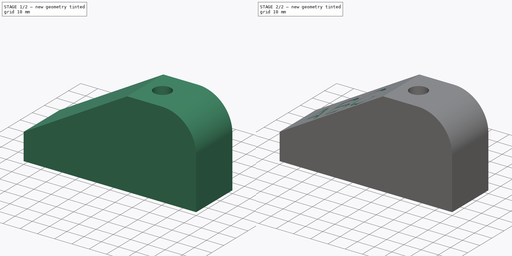
[diagram: build sequence overview — one tinted view per stage of 2, left to right]
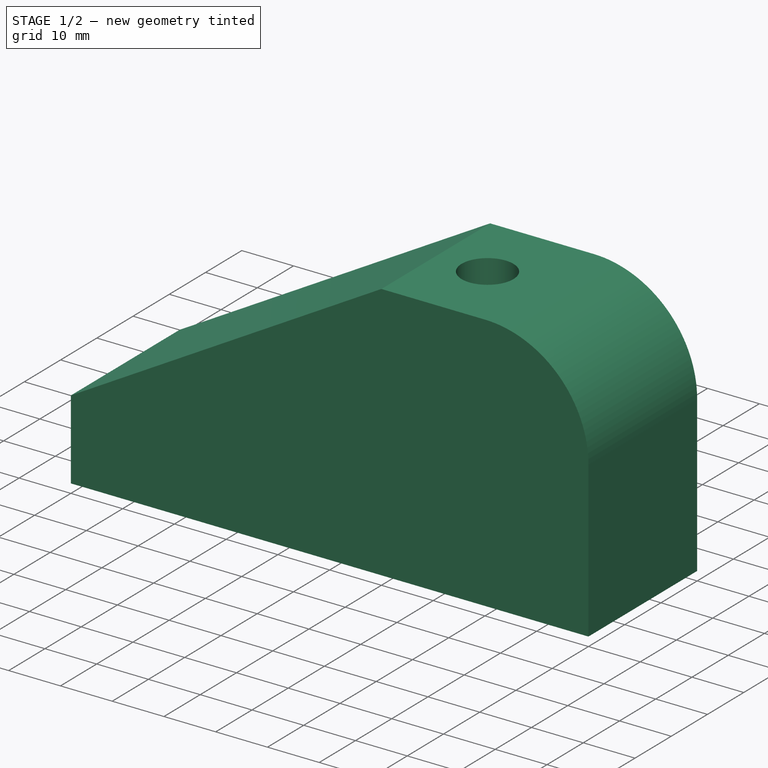
[diagram: stage 1 of 2 — iso view after this stage's code; geometry added in this stage tinted green]
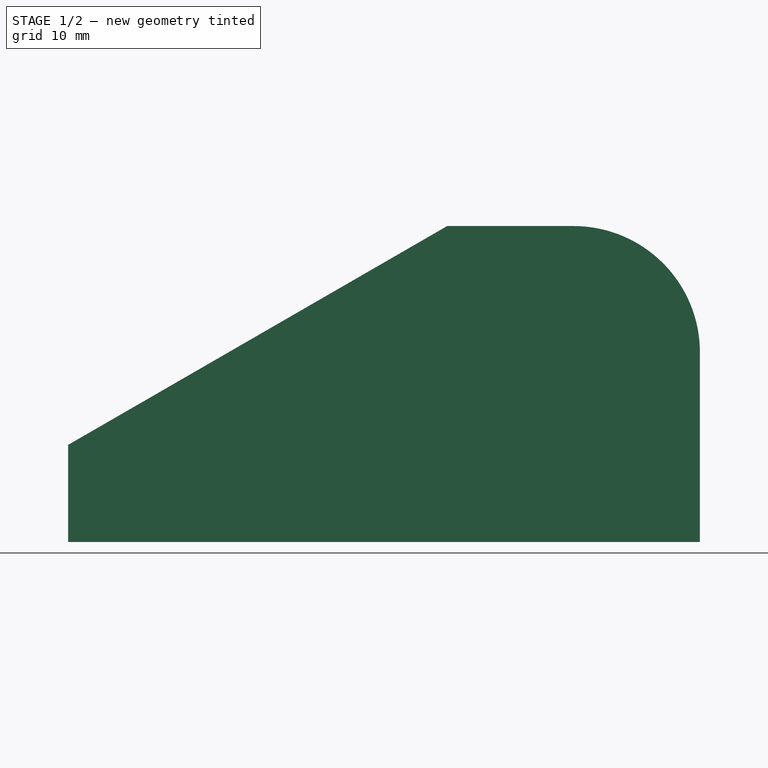
[diagram: stage 1 of 2 — front view after this stage's code; geometry added in this stage tinted green]
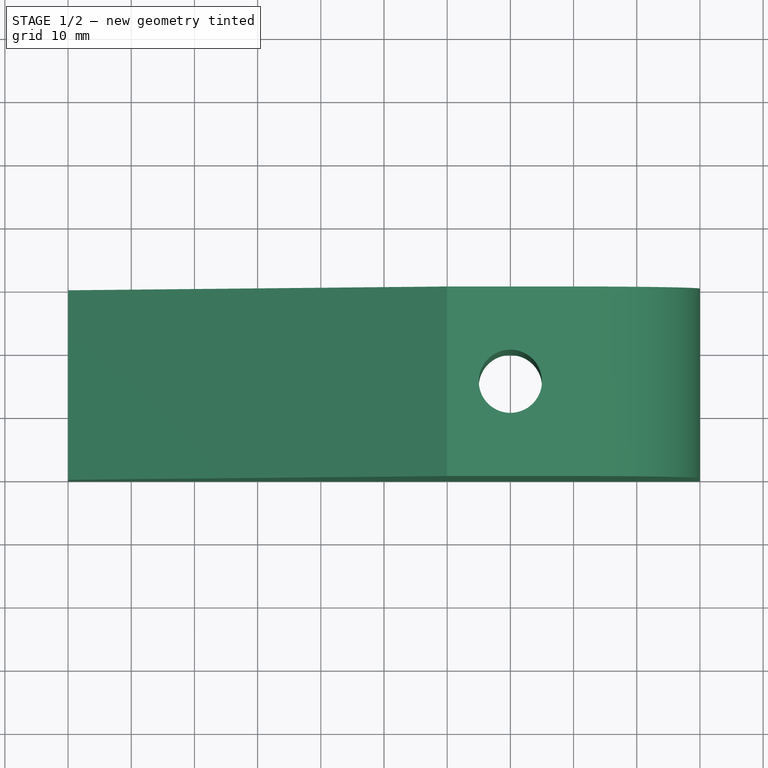
[diagram: stage 1 of 2 — top view after this stage's code; geometry added in this stage tinted green]
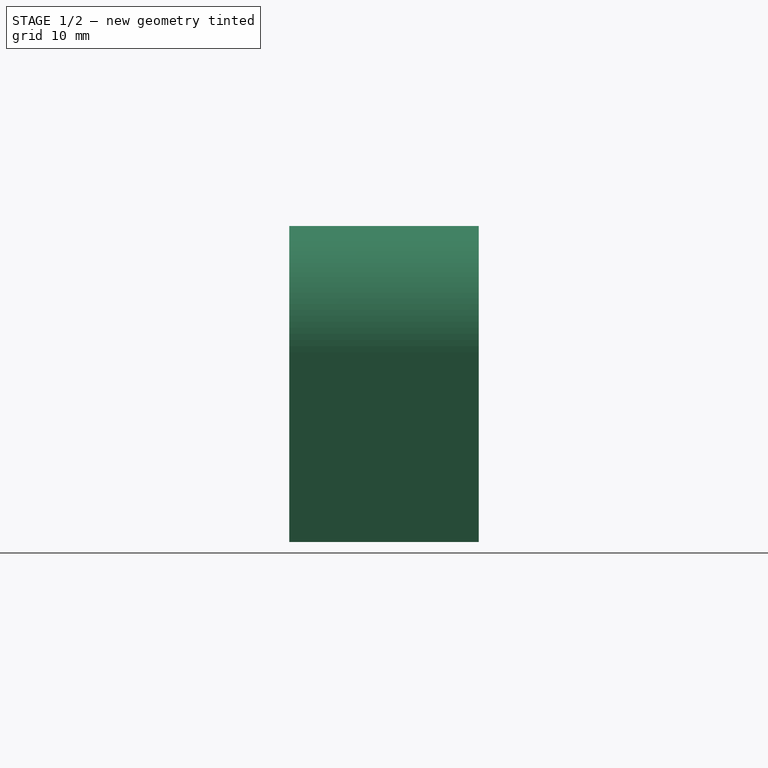
[diagram: stage 1 of 2 — right view after this stage's code; geometry added in this stage tinted green]
FCSTD DOCUMENT  (FreeCAD 0.18R15495 (Git))
Label: FirstPartV2
License: All rights reserved
LicenseURL: http://en.wikipedia.org/wiki/All_rights_reserved
objects: Sketcher::SketchObject×3, PartDesign::Pocket×2, PartDesign::Pad×1, PartDesign::Point×1, PartDesign::Plane×1, Part::Part2DObjectPython×1, PartDesign::Body×1
note: 13 computed .brp shape members not serialized (recipe doc carries the construction recipe); baked Part::Feature solids carry a one-line shape summary decoded from their .brp

FEATURE [Sketcher::SketchObject] Sketch
  MapMode = 5
  Placement = pos=(0,0,0) rot=(1,0,0;1.5708rad)
  Support = -> [XZ_Plane]
  sketch-geometry (6):
    g0: LineSegment StartX=0 StartY=0 StartZ=0 EndX=100 EndY=0 EndZ=0
    g1: LineSegment StartX=0 StartY=15.359 StartZ=0 EndX=60 EndY=50 EndZ=0
    g2: LineSegment StartX=60 StartY=50 StartZ=0 EndX=80 EndY=50 EndZ=0
    g3: LineSegment StartX=100 StartY=0 StartZ=0 EndX=100 EndY=30 EndZ=0
    g4: ArcOfCircle CenterX=80 CenterY=30 CenterZ=0 NormalX=0 NormalY=0 NormalZ=1 AngleXU=0 Radius=20 StartAngle=1e-16 EndAngle=1.5708
    g5: LineSegment StartX=0 StartY=0 StartZ=0 EndX=0 EndY=15.359 EndZ=0
  constraints (17):
    c: Coincident(g0,g-1)
    c: Horizontal(g0)
    c: Horizontal(g2)
    c: Coincident(g3,g0)
    c: Vertical(g3)
    c: Angle(g0,g1) = 0.523599
    c: DistanceX(g0,g0) = 100
    c: Coincident(g2,g1)
    c: Radius(g4) = 20
    c: Tangent(g4,g3) = -1.5708
    c: Coincident(g5,g0)
    c: PointOnObject(g5,g-2)
    c: Coincident(g1,g5)
    c: DistanceY(g0,g1) = 50
    c: Tangent(g2,g4) = 1.5708
    c: DistanceX(g0,g1) = 60
    c: DistanceX(g2,g2) = 20
FEATURE [PartDesign::Pad] Pad
  Length = 30
  Length2 = 100
  Placement = pos=(0,0,0) rot=(1,0,0;1.5708rad)
  Profile = -> Sketch
  Reversed = true
  Type = 0
FEATURE [PartDesign::Point] DatumPoint
  AttacherType = Attacher::AttachEnginePoint
  MapMode = 37
  Placement = pos=(70,15,50) rot=(0,0,1;0rad)
  Support = -> [Pad]
FEATURE [PartDesign::Plane] DatumPlane
  Length = 123.266
  MapMode = 6
  Placement = pos=(70,15,50) rot=(0,0,1;0rad)
  ResizeMode = 0
  Support = -> [Pad,DatumPoint]
  Width = 53.2665
FEATURE [Sketcher::SketchObject] Sketch001
  MapMode = 5
  Placement = pos=(70,15,50) rot=(0,0,1;0rad)
  Support = -> [DatumPlane]
  sketch-geometry (1):
    g0: Circle CenterX=0 CenterY=0 CenterZ=0 NormalX=0 NormalY=0 NormalZ=1 AngleXU=0 Radius=5
  constraints (2):
    c: Radius(g0) = 5
    c: Coincident(g0,g-1)
FEATURE [PartDesign::Pocket] Pocket
  BaseFeature = -> Pad
  Length = 5
  Length2 = 100
  Placement = pos=(0,0,0) rot=(1,0,0;1.5708rad)
  Profile = -> Sketch001
  Type = 1
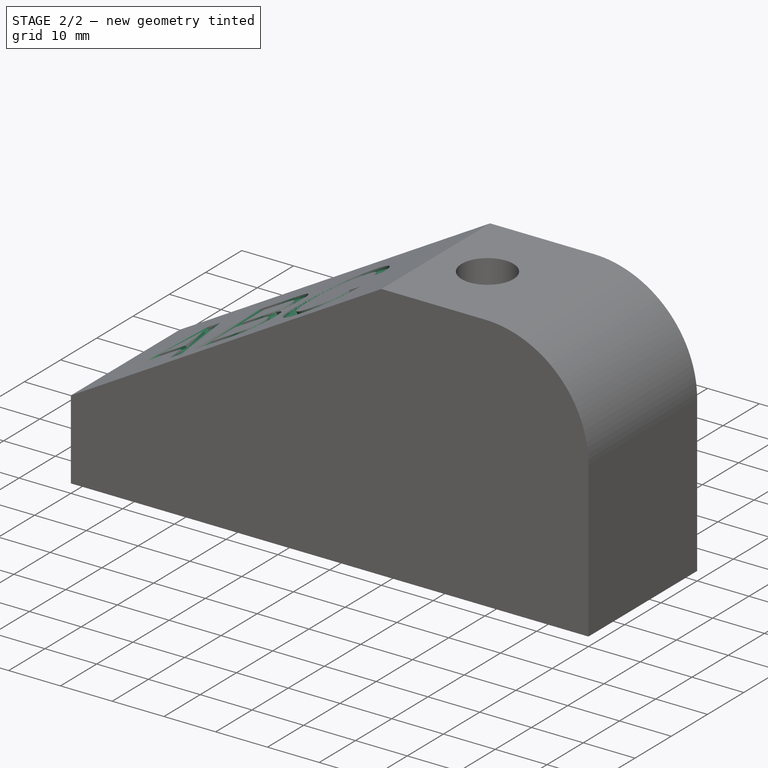
[diagram: stage 2 of 2 — iso view after this stage's code; geometry added in this stage tinted green]
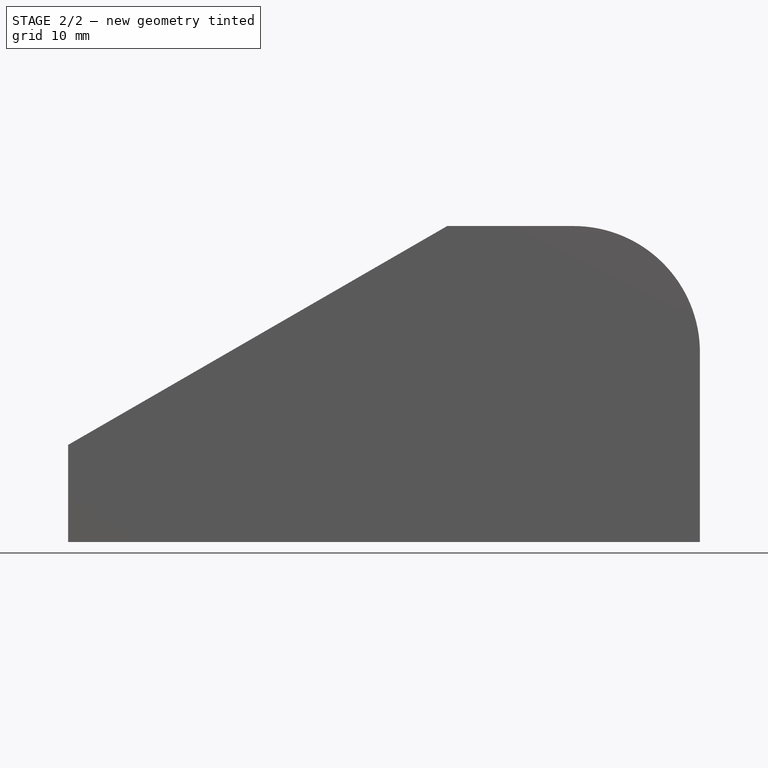
[diagram: stage 2 of 2 — front view after this stage's code; geometry added in this stage tinted green]
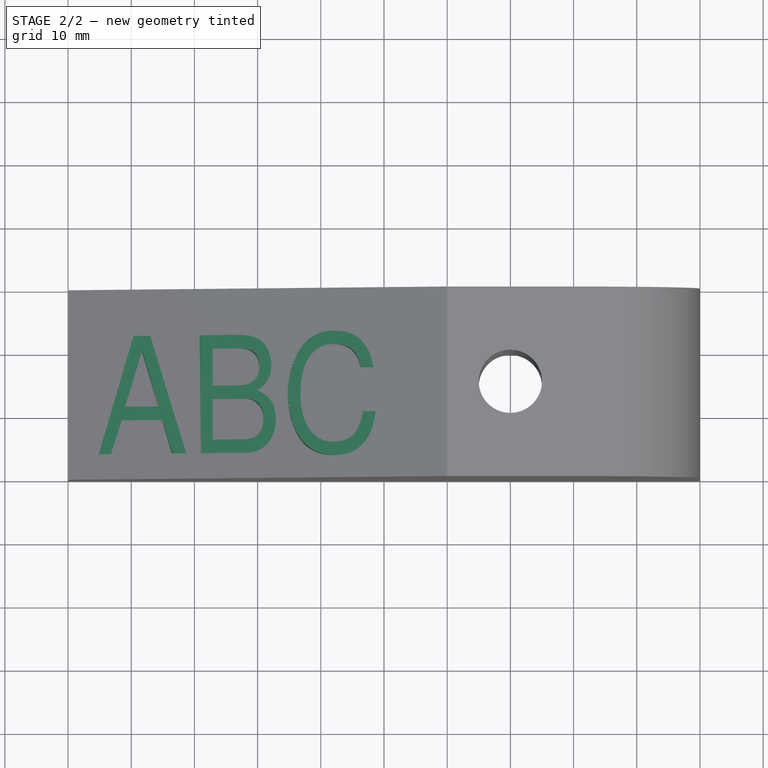
[diagram: stage 2 of 2 — top view after this stage's code; geometry added in this stage tinted green]
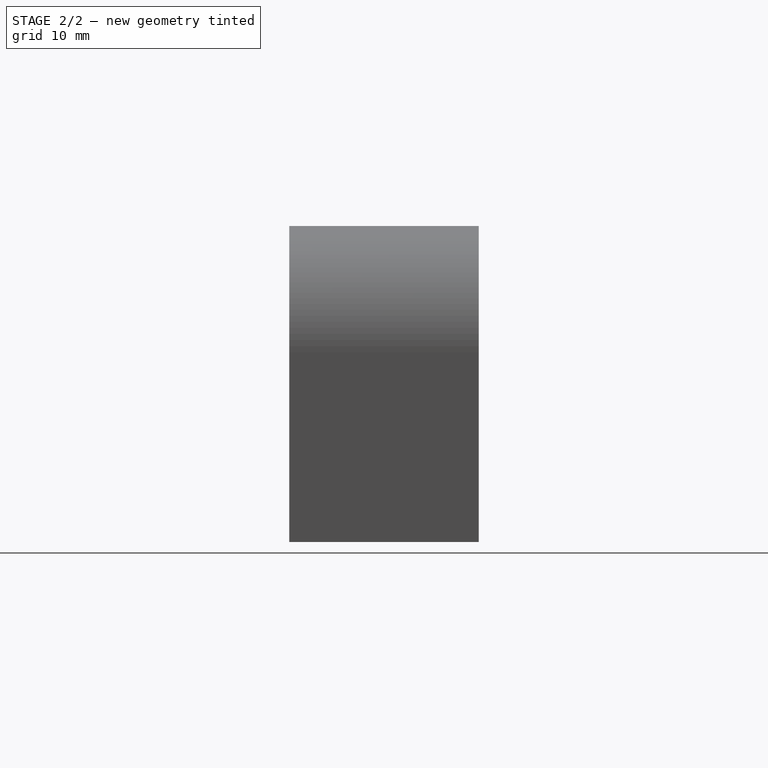
[diagram: stage 2 of 2 — right view after this stage's code; geometry added in this stage tinted green]
FEATURE [Part::Part2DObjectPython] ShapeString  # Draft 2D object (typed FeaturePython)
  FontFile = <path>
  Placement = pos=(3,4,20) rot=(0,1,0;-0.523599rad)
  Size = 10
  String = ABC
  Tracking = 0
FEATURE [Sketcher::SketchObject] Sketch002
  MapMode = 5
  Placement = pos=(-6.65064,5.1e-15,11.5192) rot=(-0.258819,0,0.965926;3.14159rad)
  Support = -> [Pocket]
  sketch-geometry (1):
    g0: LineSegment [constr] StartX=-20 StartY=-10 StartZ=0 EndX=-70 EndY=-10 EndZ=0
  constraints (4):
    c: DistanceX(g0,g-1) = 20
    c: DistanceY(g0,g-1) = 10
    c: DistanceX(g0,g0) = 50
    c: Horizontal(g0)
FEATURE [PartDesign::Pocket] Pocket001
  BaseFeature = -> Pocket
  Length = 3
  Length2 = 100
  Placement = pos=(0,0,0) rot=(1,0,0;1.5708rad)
  Profile = -> ShapeString
  Type = 0
FEATURE [PartDesign::Body] Body  label="Lug1"
  Group = -> [Sketch,Pad,DatumPoint,DatumPlane,Sketch001,Pocket,Sketch002,ShapeString,Pocket001]
  Origin = -> Origin
  Tip = -> Pocket001
note: 1 file-system path scrubbed to <path> (originals preserved in the JSON sidecar)
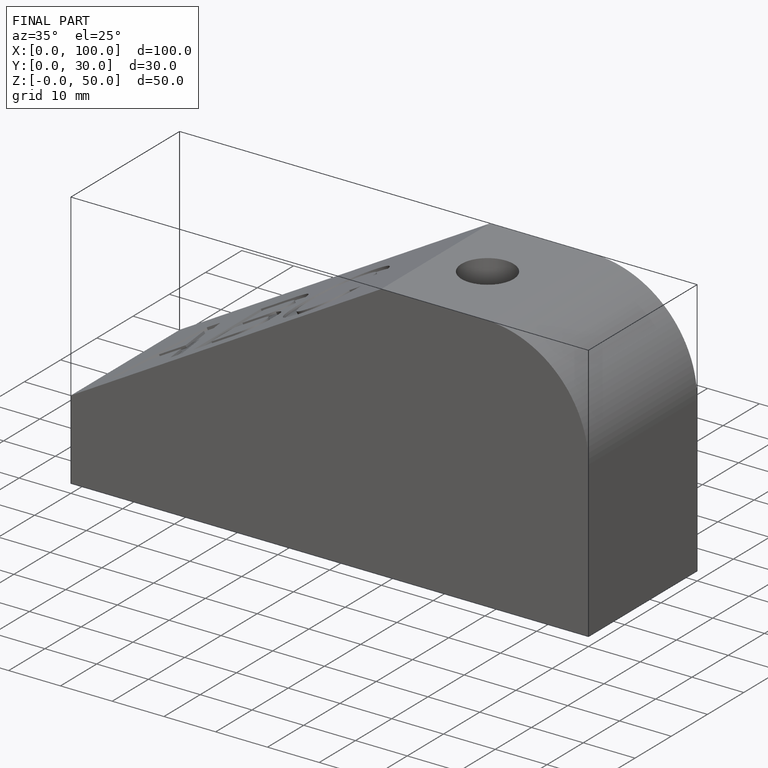
[diagram: finished part — iso view with bounding-box wireframe]
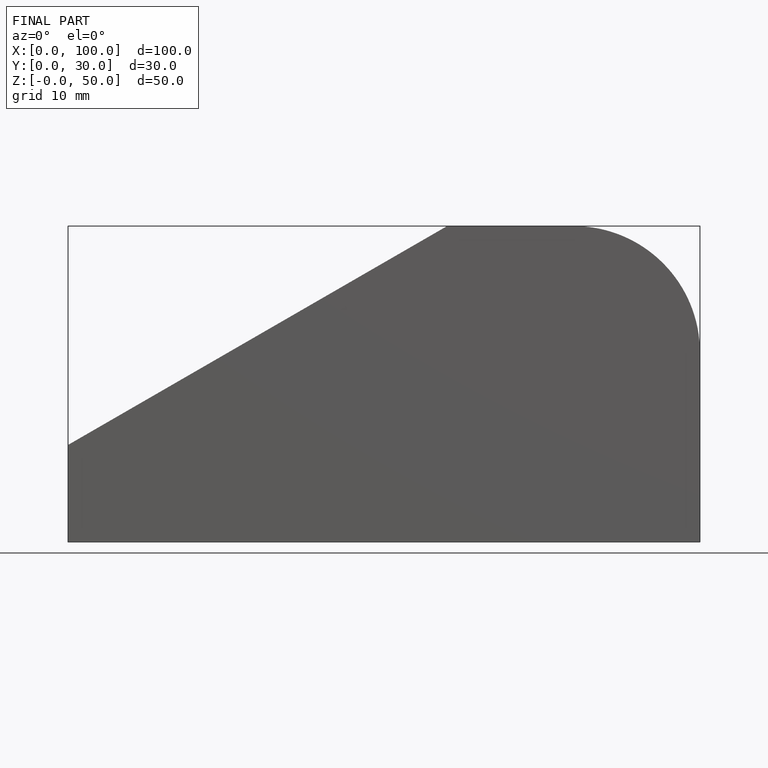
[diagram: finished part — front view with bounding-box wireframe]
